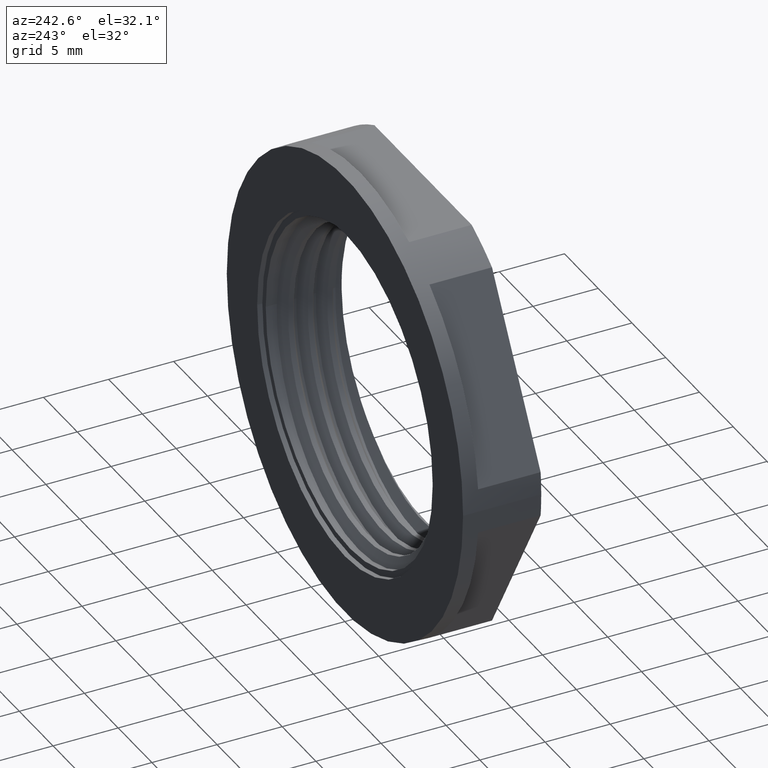
[diagram: clean part render]
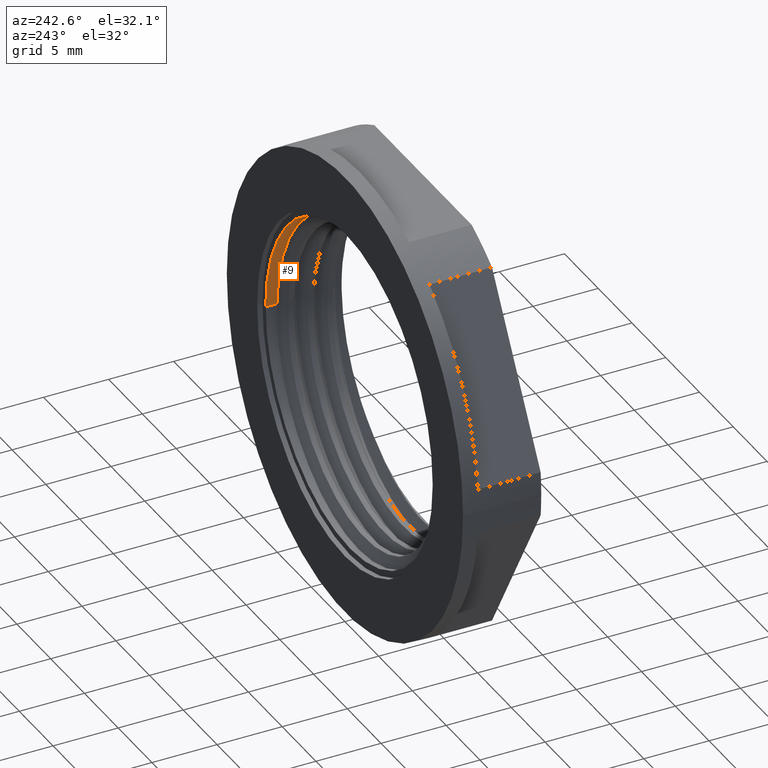
[diagram: same view with one face highlighted and labeled with its STEP entity id]
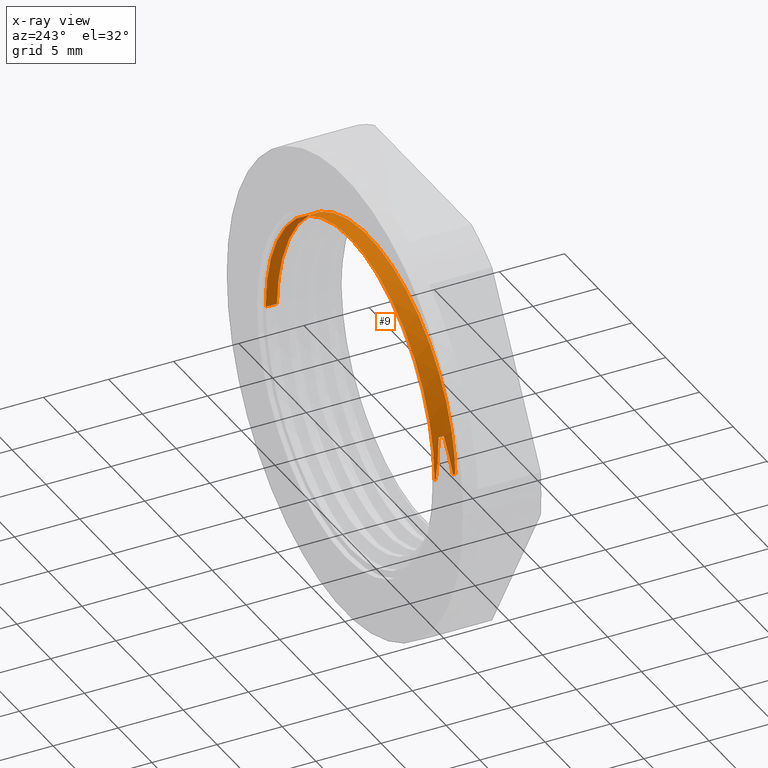
[diagram: x-ray of the same camera — body ghosted, the highlighted face saturated]
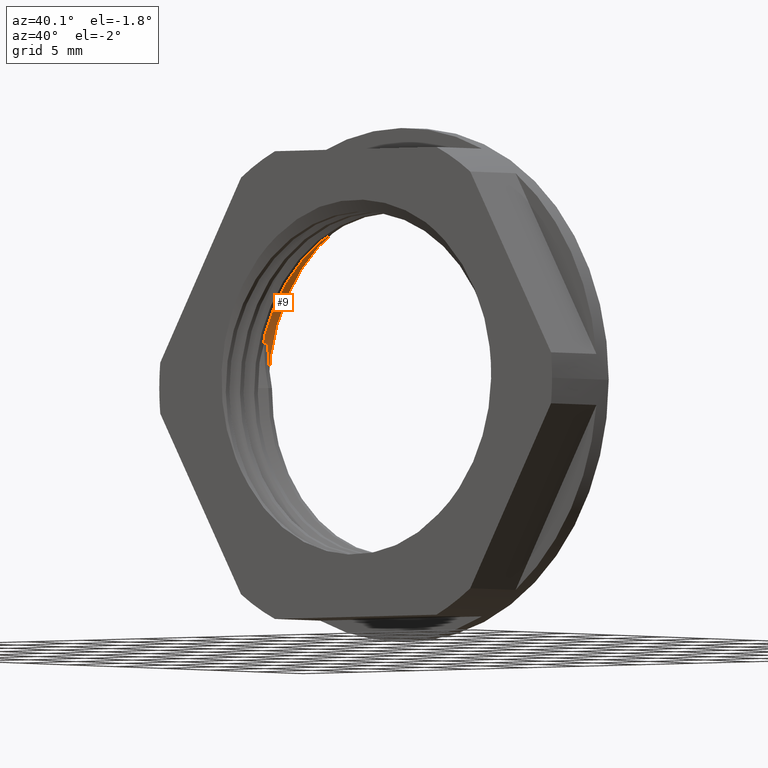
[diagram: same view with one face highlighted and labeled with its STEP entity id]
A machine part, auxiliary view. The second image highlights one B-rep face of the part: STEP entity #9.
The next image is the same camera in x-ray: the body ghosted, the highlighted face saturated — about 0% of this face is hidden behind the body in this view.
A second angle (auxiliary view) of the same face is appended — the face is thin or edge-on in the first view.
In plain terms, the highlighted cylindrical surface (partial cylindrical patch) has radius 12.5 mm, axis along (-0, 1, 0).
Its self-contained STEP definition (entity closure, byte-faithful):
#9 = ADVANCED_FACE ( 'NONE', ( #1245 ), #1285, .F. ) ;
#53 = EDGE_CURVE ( 'NONE', #996, #1000, #146, .T. ) ;
#67 = EDGE_CURVE ( 'NONE', #1077, #1013, #1826, .T. ) ;
#73 = EDGE_CURVE ( 'NONE', #1000, #1043, #144, .T. ) ;
#76 = EDGE_CURVE ( 'NONE', #1013, #996, #983, .T. ) ;
#81 = EDGE_CURVE ( 'NONE', #1043, #1016, #148, .T. ) ;
#87 = EDGE_CURVE ( 'NONE', #1016, #1023, #179, .T. ) ;
#90 = EDGE_CURVE ( 'NONE', #1077, #1056, #229, .T. ) ;
#93 = EDGE_CURVE ( 'NONE', #1056, #1023, #1768, .T. ) ;
#144 = B_SPLINE_CURVE_WITH_KNOTS ( 'NONE', 3,
 ( #900, #913, #934, #935 ),
 .UNSPECIFIED., .F., .F.,
 ( 4, 4 ),
 ( 0.0000000000000000000, 0.0003899999999999999900 ),
 .UNSPECIFIED. ) ;
#146 = B_SPLINE_CURVE_WITH_KNOTS ( 'NONE', 3,
 ( #778, #783, #802, #814 ),
 .UNSPECIFIED., .F., .F.,
 ( 4, 4 ),
 ( 0.0000000000000000000, 0.003120463623188860300 ),
 .UNSPECIFIED. ) ;
#148 = B_SPLINE_CURVE_WITH_KNOTS ( 'NONE', 3,
 ( #192, #163, #169, #165 ),
 .UNSPECIFIED., .F., .F.,
 ( 4, 4 ),
 ( 0.0000000000000000000, 0.003102991650561608300 ),
 .UNSPECIFIED. ) ;
#163 = CARTESIAN_POINT ( 'NONE',  ( -12.37326420782457600, -10.76830488501056000, 2.050715155715324000 ) ) ;
#165 = CARTESIAN_POINT ( 'NONE',  ( -12.50000000000000000, -10.50000000000000000, 0.0000000000000000000 ) ) ;
#169 = CARTESIAN_POINT ( 'NONE',  ( -12.50000000000000000, -10.63470602645917000, 1.026223468035854000 ) ) ;
#175 = DIRECTION ( 'NONE',  ( -1.224646799147352000E-016, 1.000000000000000000, 0.0000000000000000000 ) ) ;
#179 = LINE ( 'NONE', #245, #1734 ) ;
#192 = CARTESIAN_POINT ( 'NONE',  ( -12.12319921994291900, -10.90313992324810000, 3.045987635164560300 ) ) ;
#201 = DIRECTION ( 'NONE',  ( -1.224646799147352000E-016, 1.000000000000000000, 0.0000000000000000000 ) ) ;
#203 = DIRECTION ( 'NONE',  ( 1.224646799147352000E-016, -1.000000000000000000, -0.0000000000000000000 ) ) ;
#204 = DIRECTION ( 'NONE',  ( -1.000000000000000000, -1.387778780781445700E-016, 0.0000000000000000000 ) ) ;
#215 = CARTESIAN_POINT ( 'NONE',  ( 12.50000000000000000, 1.530808498934190100E-015, 1.530808498934191500E-015 ) ) ;
#229 = LINE ( 'NONE', #215, #1743 ) ;
#232 = DIRECTION ( 'NONE',  ( -1.224646799147352000E-016, 1.000000000000000000, 0.0000000000000000000 ) ) ;
#235 = CARTESIAN_POINT ( 'NONE',  ( 1.273632671113246100E-015, -10.40000000000000000, 0.0000000000000000000 ) ) ;
#245 = CARTESIAN_POINT ( 'NONE',  ( -12.50000000000000000, -1.530808498934190100E-015, 0.0000000000000000000 ) ) ;
#440 = CARTESIAN_POINT ( 'NONE',  ( -12.50000000000000000, -11.81376043070340000, 0.0000000000000000000 ) ) ;
#445 = CARTESIAN_POINT ( 'NONE',  ( -12.12319921994291900, -11.29313992324810000, 3.045987635164560300 ) ) ;
#454 = CARTESIAN_POINT ( 'NONE',  ( 12.50000000000000200, -10.39999999999999900, 1.530808498934191500E-015 ) ) ;
#467 = CARTESIAN_POINT ( 'NONE',  ( -12.12319921994291900, -10.90313992324810000, 3.045987635164560300 ) ) ;
#471 = CARTESIAN_POINT ( 'NONE',  ( -12.50000000000000000, -10.50000000000000000, 0.0000000000000000000 ) ) ;
#477 = CARTESIAN_POINT ( 'NONE',  ( -12.50000000000000000, -12.00000000000000000, 0.0000000000000000000 ) ) ;
#479 = CARTESIAN_POINT ( 'NONE',  ( 12.50000000000000000, -11.25000000000000000, -1.530808498934190100E-015 ) ) ;
#487 = CARTESIAN_POINT ( 'NONE',  ( -12.49999999999999800, -10.40000000000000200, 0.0000000000000000000 ) ) ;
#778 = CARTESIAN_POINT ( 'NONE',  ( -12.50000000000000000, -11.81376043070340000, 0.0000000000000000000 ) ) ;
#783 = CARTESIAN_POINT ( 'NONE',  ( -12.50000000000000000, -11.63985807346621300, 1.026208608005364300 ) ) ;
#802 = CARTESIAN_POINT ( 'NONE',  ( -12.37325933851536200, -11.46717192974047700, 2.050734535835249300 ) ) ;
#814 = CARTESIAN_POINT ( 'NONE',  ( -12.12319921994291900, -11.29313992324810000, 3.045987635164560300 ) ) ;
#870 = CARTESIAN_POINT ( 'NONE',  ( -5.177669529663695000, -11.71874999999999600, 12.49999999999999300 ) ) ;
#875 = CARTESIAN_POINT ( 'NONE',  ( 8.838834764831851500, -11.43750000000000000, 8.838834764831840800 ) ) ;
#887 = CARTESIAN_POINT ( 'NONE',  ( 5.177669529663695000, -11.53125000000000400, 12.49999999999999300 ) ) ;
#891 = CARTESIAN_POINT ( 'NONE',  ( -12.50000000000000000, -12.00000000000000000, 0.0000000000000000000 ) ) ;
#900 = CARTESIAN_POINT ( 'NONE',  ( -12.12319921994291900, -11.29313992324810000, 3.045987635164560300 ) ) ;
#904 = CARTESIAN_POINT ( 'NONE',  ( -12.49999999999999300, -11.90624999999999100, 5.177669529663695000 ) ) ;
#908 = CARTESIAN_POINT ( 'NONE',  ( 12.50000000000002700, -11.34374999999998600, 5.177669529663671900 ) ) ;
#909 = CARTESIAN_POINT ( 'NONE',  ( 3.719864652410084900E-015, -11.62500000000000000, 12.50000000000000000 ) ) ;
#911 = CARTESIAN_POINT ( 'NONE',  ( -8.838834764831840800, -11.81250000000000000, 8.838834764831851500 ) ) ;
#913 = CARTESIAN_POINT ( 'NONE',  ( -12.12319921994291100, -11.16313992324809800, 3.045987635164555400 ) ) ;
#921 = CARTESIAN_POINT ( 'NONE',  ( 12.50000000000000000, -11.25000000000000000, -1.530808498934190100E-015 ) ) ;
#934 = CARTESIAN_POINT ( 'NONE',  ( -12.12319921994291100, -11.03313992324810600, 3.045987635164555400 ) ) ;
#935 = CARTESIAN_POINT ( 'NONE',  ( -12.12319921994291900, -10.90313992324810000, 3.045987635164560300 ) ) ;
#960 = CARTESIAN_POINT ( 'NONE',  ( -12.50000000000000000, -1.530808498934190100E-015, 0.0000000000000000000 ) ) ;
#983 = LINE ( 'NONE', #960, #1752 ) ;
#996 = VERTEX_POINT ( 'NONE', #440 ) ;
#1000 = VERTEX_POINT ( 'NONE', #445 ) ;
#1013 = VERTEX_POINT ( 'NONE', #477 ) ;
#1016 = VERTEX_POINT ( 'NONE', #471 ) ;
#1023 = VERTEX_POINT ( 'NONE', #487 ) ;
#1043 = VERTEX_POINT ( 'NONE', #467 ) ;
#1056 = VERTEX_POINT ( 'NONE', #454 ) ;
#1058 = ORIENTED_EDGE ( 'NONE', *, *, #67, .T. ) ;
#1064 = ORIENTED_EDGE ( 'NONE', *, *, #90, .F. ) ;
#1077 = VERTEX_POINT ( 'NONE', #479 ) ;
#1090 = ORIENTED_EDGE ( 'NONE', *, *, #87, .T. ) ;
#1097 = ORIENTED_EDGE ( 'NONE', *, *, #53, .T. ) ;
#1116 = ORIENTED_EDGE ( 'NONE', *, *, #81, .T. ) ;
#1118 = ORIENTED_EDGE ( 'NONE', *, *, #76, .T. ) ;
#1119 = ORIENTED_EDGE ( 'NONE', *, *, #73, .T. ) ;
#1127 = ORIENTED_EDGE ( 'NONE', *, *, #93, .F. ) ;
#1226 = EDGE_LOOP ( 'NONE', ( #1064, #1058, #1118, #1097, #1119, #1116, #1090, #1127 ) ) ;
#1245 = FACE_OUTER_BOUND ( 'NONE', #1226, .T. ) ;
#1283 = DIRECTION ( 'NONE',  ( -1.000000000000000000, -1.224646799147352200E-016, 0.0000000000000000000 ) ) ;
#1285 = CYLINDRICAL_SURFACE ( 'NONE', #1698, 12.50000000000000000 ) ;
#1286 = CARTESIAN_POINT ( 'NONE',  ( 0.0000000000000000000, 0.0000000000000000000, 0.0000000000000000000 ) ) ;
#1307 = DIRECTION ( 'NONE',  ( -1.224646799147352000E-016, 1.000000000000000000, 0.0000000000000000000 ) ) ;
#1698 = AXIS2_PLACEMENT_3D ( 'NONE', #1286, #1307, #1283 ) ;
#1734 = VECTOR ( 'NONE', #232, 1000.000000000000000 ) ;
#1743 = VECTOR ( 'NONE', #201, 1000.000000000000000 ) ;
#1752 = VECTOR ( 'NONE', #175, 1000.000000000000000 ) ;
#1768 = CIRCLE ( 'NONE', #1785, 12.50000000000000000 ) ;
#1785 = AXIS2_PLACEMENT_3D ( 'NONE', #235, #203, #204 ) ;
#1826 =( BOUNDED_CURVE ( )  B_SPLINE_CURVE ( 2, ( #921, #908, #875, #887, #909, #870, #911, #904, #891 ),
 .UNSPECIFIED., .F., .F. ) 
 B_SPLINE_CURVE_WITH_KNOTS ( ( 3, 2, 2, 2, 3 ),
 ( 0.09999999999999992200, 0.1249999999999999400, 0.1499999999999999700, 0.1749999999999999600, 0.2000000000000000100 ),
 .UNSPECIFIED. ) 
 CURVE ( )  GEOMETRIC_REPRESENTATION_ITEM ( )  RATIONAL_B_SPLINE_CURVE ( ( 1.000000000000000200, 0.9238795325112867400, 1.000000000000000000, 0.9238795325112869600, 1.000000000000000000, 0.9238795325112869600, 1.000000000000000000, 0.9238795325112869600, 1.000000000000000000 ) ) 
 REPRESENTATION_ITEM ( '' )  );